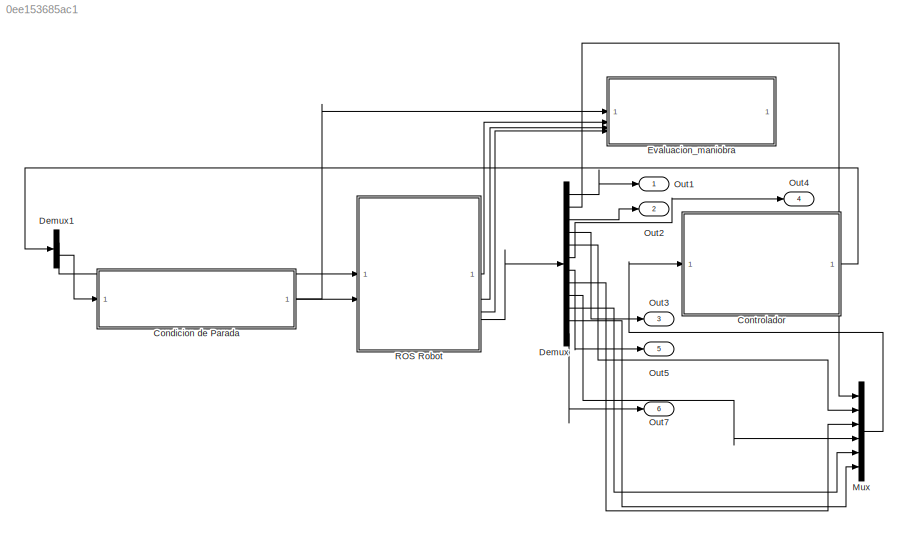
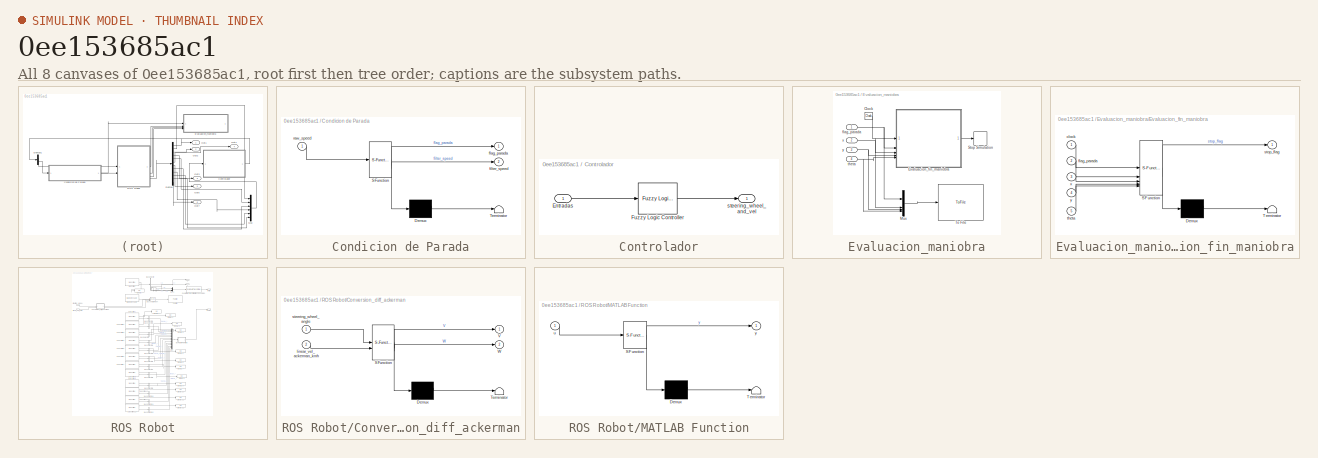
[diagram: thumbnail index - all 8 canvases of the model, root first then tree order]
MODEL slx_0ee153685ac1
KIND model
CONFIG AbsTol = auto
CONFIG EnableMultiTasking = off
CONFIG FixedStep = 0.1
CONFIG MaxStep = auto
CONFIG MinStep = auto
CONFIG RelTol = 1e-3
CONFIG SampleTimeConstraint = Unconstrained
CONFIG SolverName = FixedStepDiscrete
CONFIG StartTime = 0.0
CONFIG StopTime = 200
BLOCK [SubSystem] Condicion de Parada
  ErrorFcn = Stateflow.Translate.translate
  PermitHierarchicalResolution = ExplicitOnly
  SFBlockType = MATLAB Function
  TreatAsAtomicUnit = on
BLOCK [Demux] Condicion de Parada/ Demux 
  Outputs = 1
BLOCK [S-Function] Condicion de Parada/ SFunction 
  EnableBusSupport = on
  FunctionName = sf_sfun
  PortCounts = [1 3]
  SFcnIsStateOwnerBlock = off
  SFunctionDeploymentMode = off
  Tag = Stateflow S-Function 3
BLOCK [Terminator] Condicion de Parada/ Terminator 
BLOCK [Outport] Condicion de Parada/filter_speed
  Port = 2
BLOCK [Outport] Condicion de Parada/flag_parada
BLOCK [Inport] Condicion de Parada/raw_speed
BLOCK [SubSystem] Controlador
BLOCK [Inport] Controlador/Entradas
BLOCK [Reference] Controlador/Fuzzy Logic Controller  REF=fuzblock/Fuzzy Logic   (lib defined in mdl_858b3b3e7478)
Controller
  SourceBlock = fuzblock/Fuzzy Logic \nController
  SourceType = Fuzzy Inference System
BLOCK [Outport] Controlador/steering_wheel_and_vel
  VectorParamsAs1DForOutWhenUnconnected = off
BLOCK [Demux] Demux
  Outputs = 12
BLOCK [Demux] Demux1
  Outputs = 2
BLOCK [SubSystem] Evaluacion_maniobra
BLOCK [Clock] Evaluacion_maniobra/Clock
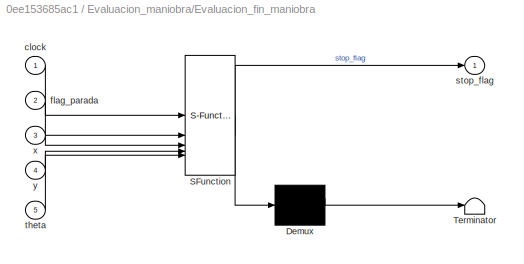
BLOCK [SubSystem] Evaluacion_maniobra/Evaluacion_fin_maniobra
  ErrorFcn = Stateflow.Translate.translate
  PermitHierarchicalResolution = ExplicitOnly
  SFBlockType = MATLAB Function
  TreatAsAtomicUnit = on
BLOCK [Demux] Evaluacion_maniobra/Evaluacion_fin_maniobra/ Demux 
  Outputs = 1
BLOCK [S-Function] Evaluacion_maniobra/Evaluacion_fin_maniobra/ SFunction 
  EnableBusSupport = on
  FunctionName = sf_sfun
  PortCounts = [5 2]
  SFcnIsStateOwnerBlock = off
  SFunctionDeploymentMode = off
  Tag = Stateflow S-Function 4
BLOCK [Terminator] Evaluacion_maniobra/Evaluacion_fin_maniobra/ Terminator 
BLOCK [Inport] Evaluacion_maniobra/Evaluacion_fin_maniobra/clock
BLOCK [Inport] Evaluacion_maniobra/Evaluacion_fin_maniobra/flag_parada
  Port = 2
BLOCK [Outport] Evaluacion_maniobra/Evaluacion_fin_maniobra/stop_flag
BLOCK [Inport] Evaluacion_maniobra/Evaluacion_fin_maniobra/theta
  Port = 5
BLOCK [Inport] Evaluacion_maniobra/Evaluacion_fin_maniobra/x
  Port = 3
BLOCK [Inport] Evaluacion_maniobra/Evaluacion_fin_maniobra/y
  Port = 4
BLOCK [Mux] Evaluacion_maniobra/Mux
  DisplayOption = bar
BLOCK [Stop] Evaluacion_maniobra/Stop Simulation
BLOCK [ToFile] Evaluacion_maniobra/To File
  Filename = parking_data.mat
BLOCK [Inport] Evaluacion_maniobra/flag_parada
BLOCK [Inport] Evaluacion_maniobra/theta
  Port = 4
BLOCK [Inport] Evaluacion_maniobra/x
  Port = 2
BLOCK [Inport] Evaluacion_maniobra/y
  Port = 3
BLOCK [Mux] Mux
  DisplayOption = bar
  Inputs = 6
BLOCK [Outport] Out1
BLOCK [Outport] Out2
  Port = 2
BLOCK [Outport] Out3
  Port = 3
BLOCK [Outport] Out4
  Port = 4
BLOCK [Outport] Out5
  Port = 5
BLOCK [Outport] Out7
  Port = 6
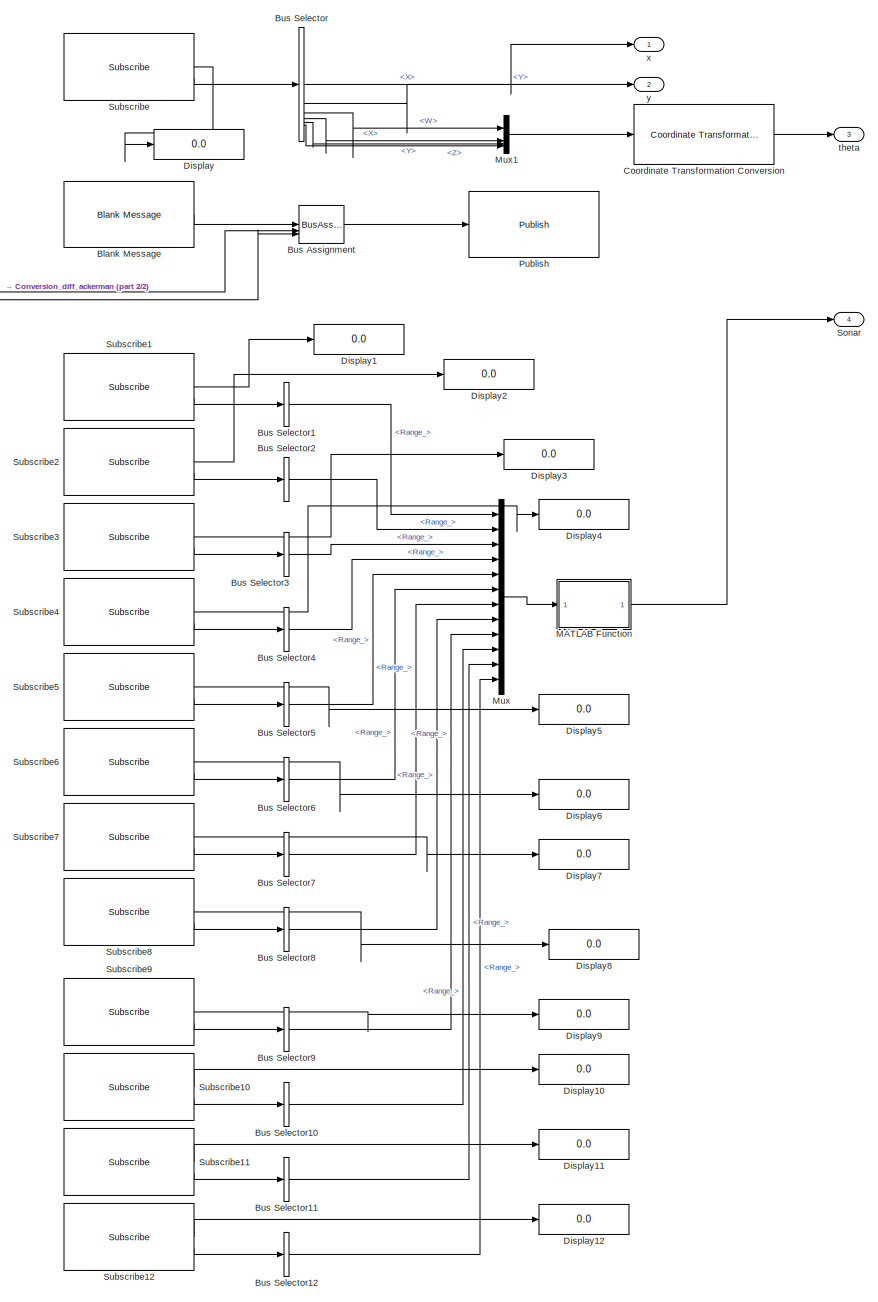
[diagram: ROS Robot - part 1/2, center side, full height]
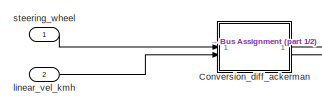
[diagram: ROS Robot - part 2/2, top left region]
BLOCK [SubSystem] ROS Robot
BLOCK [Reference] ROS Robot/Blank Message  REF=robotlib/Blank Message
  SourceBlock = robotlib/Blank Message
  SourceType = ROS Blank Message
BLOCK [BusAssignment] ROS Robot/Bus Assignment
  AssignedSignals = Linear.X,Angular.Z
BLOCK [BusSelector] ROS Robot/Bus Selector
  OutputSignals = Pose.Pose.Position.X,Pose.Pose.Position.Y,Pose.Pose.Orientation.W,Pose.Pose.Orientation.X,Pose.Pose.Orientation.Y,Pose.Pose.Orientation.Z
BLOCK [BusSelector] ROS Robot/Bus Selector1
  OutputSignals = Range_
BLOCK [BusSelector] ROS Robot/Bus Selector10
  OutputSignals = Range_
BLOCK [BusSelector] ROS Robot/Bus Selector11
  OutputSignals = Range_
BLOCK [BusSelector] ROS Robot/Bus Selector12
  OutputSignals = Range_
BLOCK [BusSelector] ROS Robot/Bus Selector2
  OutputSignals = Range_
BLOCK [BusSelector] ROS Robot/Bus Selector3
  OutputSignals = Range_
BLOCK [BusSelector] ROS Robot/Bus Selector4
  OutputSignals = Range_
BLOCK [BusSelector] ROS Robot/Bus Selector5
  OutputSignals = Range_
BLOCK [BusSelector] ROS Robot/Bus Selector6
  OutputSignals = Range_
BLOCK [BusSelector] ROS Robot/Bus Selector7
  OutputSignals = Range_
BLOCK [BusSelector] ROS Robot/Bus Selector8
  OutputSignals = Range_
BLOCK [BusSelector] ROS Robot/Bus Selector9
  OutputSignals = Range_
BLOCK [SubSystem] ROS Robot/Conversion_diff_ackerman
  ErrorFcn = Stateflow.Translate.translate
  PermitHierarchicalResolution = ExplicitOnly
  SFBlockType = MATLAB Function
  TreatAsAtomicUnit = on
BLOCK [Demux] ROS Robot/Conversion_diff_ackerman/ Demux 
  Outputs = 1
BLOCK [S-Function] ROS Robot/Conversion_diff_ackerman/ SFunction 
  EnableBusSupport = on
  FunctionName = sf_sfun
  PortCounts = [2 3]
  SFcnIsStateOwnerBlock = off
  SFunctionDeploymentMode = off
  Tag = Stateflow S-Function 1
BLOCK [Terminator] ROS Robot/Conversion_diff_ackerman/ Terminator 
BLOCK [Outport] ROS Robot/Conversion_diff_ackerman/V
BLOCK [Outport] ROS Robot/Conversion_diff_ackerman/W
  Port = 2
BLOCK [Inport] ROS Robot/Conversion_diff_ackerman/linear_vel_ackerman_kmh
  Port = 2
BLOCK [Inport] ROS Robot/Conversion_diff_ackerman/steering_wheel_angle
BLOCK [Reference] ROS Robot/Coordinate Transformation Conversion  REF=robotcorelib/Coordinate Transformation Conversion
  SourceBlock = robotcorelib/Coordinate Transformation Conversion
  SourceType = robotics.slcore.internal.block.CoordinateTransformationConversion
BLOCK [Display] ROS Robot/Display
  Decimation = 1
BLOCK [Display] ROS Robot/Display1
  Decimation = 1
BLOCK [Display] ROS Robot/Display10
  Decimation = 1
BLOCK [Display] ROS Robot/Display11
  Decimation = 1
BLOCK [Display] ROS Robot/Display12
  Decimation = 1
BLOCK [Display] ROS Robot/Display2
  Decimation = 1
BLOCK [Display] ROS Robot/Display3
  Decimation = 1
BLOCK [Display] ROS Robot/Display4
  Decimation = 1
BLOCK [Display] ROS Robot/Display5
  Decimation = 1
BLOCK [Display] ROS Robot/Display6
  Decimation = 1
BLOCK [Display] ROS Robot/Display7
  Decimation = 1
BLOCK [Display] ROS Robot/Display8
  Decimation = 1
BLOCK [Display] ROS Robot/Display9
  Decimation = 1
BLOCK [SubSystem] ROS Robot/MATLAB Function
  ErrorFcn = Stateflow.Translate.translate
  PermitHierarchicalResolution = ExplicitOnly
  SFBlockType = MATLAB Function
  TreatAsAtomicUnit = on
BLOCK [Demux] ROS Robot/MATLAB Function/ Demux 
  Outputs = 1
BLOCK [S-Function] ROS Robot/MATLAB Function/ SFunction 
  EnableBusSupport = on
  FunctionName = sf_sfun
  PortCounts = [1 2]
  SFcnIsStateOwnerBlock = off
  SFunctionDeploymentMode = off
  Tag = Stateflow S-Function 2
BLOCK [Terminator] ROS Robot/MATLAB Function/ Terminator 
BLOCK [Inport] ROS Robot/MATLAB Function/u
BLOCK [Outport] ROS Robot/MATLAB Function/y
  VectorParamsAs1DForOutWhenUnconnected = off
BLOCK [Mux] ROS Robot/Mux
  DisplayOption = bar
  Inputs = 12
BLOCK [Mux] ROS Robot/Mux1
  DisplayOption = bar
BLOCK [Reference] ROS Robot/Publish  REF=robotlib/Publish
  SourceBlock = robotlib/Publish
  SourceType = ROS Publish
BLOCK [Outport] ROS Robot/Sonar
  Port = 4
  VectorParamsAs1DForOutWhenUnconnected = off
BLOCK [Reference] ROS Robot/Subscribe  REF=robotlib/Subscribe
  SourceBlock = robotlib/Subscribe
  SourceType = ROS Subscribe
BLOCK [Reference] ROS Robot/Subscribe1  REF=robotlib/Subscribe
  SourceBlock = robotlib/Subscribe
  SourceType = ROS Subscribe
BLOCK [Reference] ROS Robot/Subscribe10  REF=robotlib/Subscribe
  SourceBlock = robotlib/Subscribe
  SourceType = ROS Subscribe
BLOCK [Reference] ROS Robot/Subscribe11  REF=robotlib/Subscribe
  SourceBlock = robotlib/Subscribe
  SourceType = ROS Subscribe
BLOCK [Reference] ROS Robot/Subscribe12  REF=robotlib/Subscribe
  SourceBlock = robotlib/Subscribe
  SourceType = ROS Subscribe
BLOCK [Reference] ROS Robot/Subscribe2  REF=robotlib/Subscribe
  SourceBlock = robotlib/Subscribe
  SourceType = ROS Subscribe
BLOCK [Reference] ROS Robot/Subscribe3  REF=robotlib/Subscribe
  SourceBlock = robotlib/Subscribe
  SourceType = ROS Subscribe
BLOCK [Reference] ROS Robot/Subscribe4  REF=robotlib/Subscribe
  SourceBlock = robotlib/Subscribe
  SourceType = ROS Subscribe
BLOCK [Reference] ROS Robot/Subscribe5  REF=robotlib/Subscribe
  SourceBlock = robotlib/Subscribe
  SourceType = ROS Subscribe
BLOCK [Reference] ROS Robot/Subscribe6  REF=robotlib/Subscribe
  SourceBlock = robotlib/Subscribe
  SourceType = ROS Subscribe
BLOCK [Reference] ROS Robot/Subscribe7  REF=robotlib/Subscribe
  SourceBlock = robotlib/Subscribe
  SourceType = ROS Subscribe
BLOCK [Reference] ROS Robot/Subscribe8  REF=robotlib/Subscribe
  SourceBlock = robotlib/Subscribe
  SourceType = ROS Subscribe
BLOCK [Reference] ROS Robot/Subscribe9  REF=robotlib/Subscribe
  SourceBlock = robotlib/Subscribe
  SourceType = ROS Subscribe
BLOCK [Inport] ROS Robot/linear_vel_kmh
  Port = 2
BLOCK [Inport] ROS Robot/steering_wheel
BLOCK [Outport] ROS Robot/theta
  Port = 3
  VectorParamsAs1DForOutWhenUnconnected = off
BLOCK [Outport] ROS Robot/x
  VectorParamsAs1DForOutWhenUnconnected = off
BLOCK [Outport] ROS Robot/y
  Port = 2
  VectorParamsAs1DForOutWhenUnconnected = off
LINE Condicion de Parada:1 -> Evaluacion_maniobra:1
LINE Condicion de Parada:2 -> ROS Robot:2
LINE Controlador/Entradas:1 -> Controlador/Fuzzy Logic Controller:1
LINE Controlador/Fuzzy Logic Controller:1 -> Controlador/steering_wheel_and_vel:1
LINE Controlador:1 -> Demux1:1
LINE Demux1:1 -> ROS Robot:1
LINE Demux1:2 -> Condicion de Parada:1
LINE Demux:1 -> Out1:1
LINE Demux:10 -> Mux:5
LINE Demux:11 -> Mux:6
LINE Demux:12 -> Out7:1
LINE Demux:2 -> Mux:1
LINE Demux:3 -> Out2:1
LINE Demux:4 -> Out3:1
LINE Demux:5 -> Mux:2
LINE Demux:6 -> Out4:1
LINE Demux:7 -> Out5:1
LINE Demux:8 -> Mux:3
LINE Demux:9 -> Mux:4
LINE Evaluacion_maniobra/Clock:1 -> Evaluacion_maniobra/Evaluacion_fin_maniobra:1
LINE Evaluacion_maniobra/Evaluacion_fin_maniobra:1 -> Evaluacion_maniobra/Stop Simulation:1
LINE Evaluacion_maniobra/Mux:1 -> Evaluacion_maniobra/To File:1
NET Evaluacion_maniobra/flag_parada:1 -> Evaluacion_maniobra/Evaluacion_fin_maniobra:2, Evaluacion_maniobra/Mux:1
NET Evaluacion_maniobra/theta:1 -> Evaluacion_maniobra/Evaluacion_fin_maniobra:5, Evaluacion_maniobra/Mux:4
NET Evaluacion_maniobra/x:1 -> Evaluacion_maniobra/Evaluacion_fin_maniobra:3, Evaluacion_maniobra/Mux:2
NET Evaluacion_maniobra/y:1 -> Evaluacion_maniobra/Evaluacion_fin_maniobra:4, Evaluacion_maniobra/Mux:3
LINE Mux:1 -> Controlador:1
LINE ROS Robot/Blank Message:1 -> ROS Robot/Bus Assignment:1
LINE ROS Robot/Bus Assignment:1 -> ROS Robot/Publish:1
LINE ROS Robot/Bus Selector10:1 -> ROS Robot/Mux:10
LINE ROS Robot/Bus Selector11:1 -> ROS Robot/Mux:11
LINE ROS Robot/Bus Selector12:1 -> ROS Robot/Mux:12
LINE ROS Robot/Bus Selector1:1 -> ROS Robot/Mux:1
LINE ROS Robot/Bus Selector2:1 -> ROS Robot/Mux:2
LINE ROS Robot/Bus Selector3:1 -> ROS Robot/Mux:3
LINE ROS Robot/Bus Selector4:1 -> ROS Robot/Mux:4
LINE ROS Robot/Bus Selector5:1 -> ROS Robot/Mux:5
LINE ROS Robot/Bus Selector6:1 -> ROS Robot/Mux:6
LINE ROS Robot/Bus Selector7:1 -> ROS Robot/Mux:7
LINE ROS Robot/Bus Selector8:1 -> ROS Robot/Mux:8
LINE ROS Robot/Bus Selector9:1 -> ROS Robot/Mux:9
LINE ROS Robot/Bus Selector:1 -> ROS Robot/x:1
LINE ROS Robot/Bus Selector:2 -> ROS Robot/y:1
LINE ROS Robot/Bus Selector:3 -> ROS Robot/Mux1:1
LINE ROS Robot/Bus Selector:4 -> ROS Robot/Mux1:2
LINE ROS Robot/Bus Selector:5 -> ROS Robot/Mux1:3
LINE ROS Robot/Bus Selector:6 -> ROS Robot/Mux1:4
LINE ROS Robot/Conversion_diff_ackerman:1 -> ROS Robot/Bus Assignment:2
LINE ROS Robot/Conversion_diff_ackerman:2 -> ROS Robot/Bus Assignment:3
LINE ROS Robot/Coordinate Transformation Conversion:1 -> ROS Robot/theta:1
LINE ROS Robot/MATLAB Function:1 -> ROS Robot/Sonar:1
LINE ROS Robot/Mux1:1 -> ROS Robot/Coordinate Transformation Conversion:1
LINE ROS Robot/Mux:1 -> ROS Robot/MATLAB Function:1
LINE ROS Robot/Subscribe10:1 -> ROS Robot/Display10:1
LINE ROS Robot/Subscribe10:2 -> ROS Robot/Bus Selector10:1
LINE ROS Robot/Subscribe11:1 -> ROS Robot/Display11:1
LINE ROS Robot/Subscribe11:2 -> ROS Robot/Bus Selector11:1
LINE ROS Robot/Subscribe12:1 -> ROS Robot/Display12:1
LINE ROS Robot/Subscribe12:2 -> ROS Robot/Bus Selector12:1
LINE ROS Robot/Subscribe1:1 -> ROS Robot/Display1:1
LINE ROS Robot/Subscribe1:2 -> ROS Robot/Bus Selector1:1
LINE ROS Robot/Subscribe2:1 -> ROS Robot/Display2:1
LINE ROS Robot/Subscribe2:2 -> ROS Robot/Bus Selector2:1
LINE ROS Robot/Subscribe3:1 -> ROS Robot/Display3:1
LINE ROS Robot/Subscribe3:2 -> ROS Robot/Bus Selector3:1
LINE ROS Robot/Subscribe4:1 -> ROS Robot/Display4:1
LINE ROS Robot/Subscribe4:2 -> ROS Robot/Bus Selector4:1
LINE ROS Robot/Subscribe5:1 -> ROS Robot/Display5:1
LINE ROS Robot/Subscribe5:2 -> ROS Robot/Bus Selector5:1
LINE ROS Robot/Subscribe6:1 -> ROS Robot/Display6:1
LINE ROS Robot/Subscribe6:2 -> ROS Robot/Bus Selector6:1
LINE ROS Robot/Subscribe7:1 -> ROS Robot/Display7:1
LINE ROS Robot/Subscribe7:2 -> ROS Robot/Bus Selector7:1
LINE ROS Robot/Subscribe8:1 -> ROS Robot/Display8:1
LINE ROS Robot/Subscribe8:2 -> ROS Robot/Bus Selector8:1
LINE ROS Robot/Subscribe9:1 -> ROS Robot/Display9:1
LINE ROS Robot/Subscribe9:2 -> ROS Robot/Bus Selector9:1
LINE ROS Robot/Subscribe:1 -> ROS Robot/Display:1
LINE ROS Robot/Subscribe:2 -> ROS Robot/Bus Selector:1
LINE ROS Robot/linear_vel_kmh:1 -> ROS Robot/Conversion_diff_ackerman:2
LINE ROS Robot/steering_wheel:1 -> ROS Robot/Conversion_diff_ackerman:1
LINE ROS Robot:1 -> Evaluacion_maniobra:2
LINE ROS Robot:2 -> Evaluacion_maniobra:3
LINE ROS Robot:3 -> Evaluacion_maniobra:4
LINE ROS Robot:4 -> Demux:1
note: NET lines group one-source signal fan-out (src -> all destinations, sorted); 1:1 wires keep LINE
CHART ROS Robot/Conversion_diff_ackerman states=1 transitions=1
  STATE_LABEL 'eML_blk_kernel()'
  STATE_LABEL 'SCRIPT:\nfunction [V,W] = fcn(steering_wheel_angle, linear_vel_ackerman_kmh)\n\n    %Aproximacion de angulo volante y velocidad linal a vel_linar y angular.\n    % *************************************\n    \n    min_turning_radius_vehicle = 2;  % radio de giro del vehiculo. Radio minimo en el que gira 180 grados. \n    max_turning_radius_vehicle = 34; % radio de giro del vehiculo. Radio máximo con el vo...<+1748ch>'
CHART ROS Robot/MATLAB Function states=1 transitions=1
  STATE_LABEL 'eML_blk_kernel()'
  STATE_LABEL 'SCRIPT:\nfunction y = fcn(u)\nu(isinf(u))=5.0;\ny = u;\n'
CHART Condicion de Parada states=1 transitions=1
  STATE_LABEL 'eML_blk_kernel()'
  STATE_LABEL 'SCRIPT:\nfunction [flag_parada, filter_speed] = condicion_parada(raw_speed)\n\n% Condicion de parada:\n% - debeis decidir cuando se finaliza la maniobra de aparcamiento en base\n%  a la información disponible:\n%      - velocidad_lineal\n%      - ángulo de volante      \n%      - sensores\n% Una vez que decidais cual es el criterio de parada debeis:\n%   - Parar el vehículo con v_lineal = 0.\n%   - Activar e...<+356ch>'
CHART Evaluacion_maniobra/Evaluacion_fin_maniobra states=1 transitions=1
  STATE_LABEL 'eML_blk_kernel()'
  STATE_LABEL 'SCRIPT:\nfunction stop_flag = evaluacion_maniobra(clock, flag_parada, x, y, theta)\n\nif flag_parada == 1\n\n    parking_time = clock\n    parking_position_x = x\n    parking_position_y = y\n    parking_position_theta = theta\n    stop_flag = 1;\nelse\n    stop_flag = 0;\n\nend\n\n'
CHART  states=0 transitions=0
CHART  states=0 transitions=0
CHART  states=0 transitions=0
CHART  states=0 transitions=0
